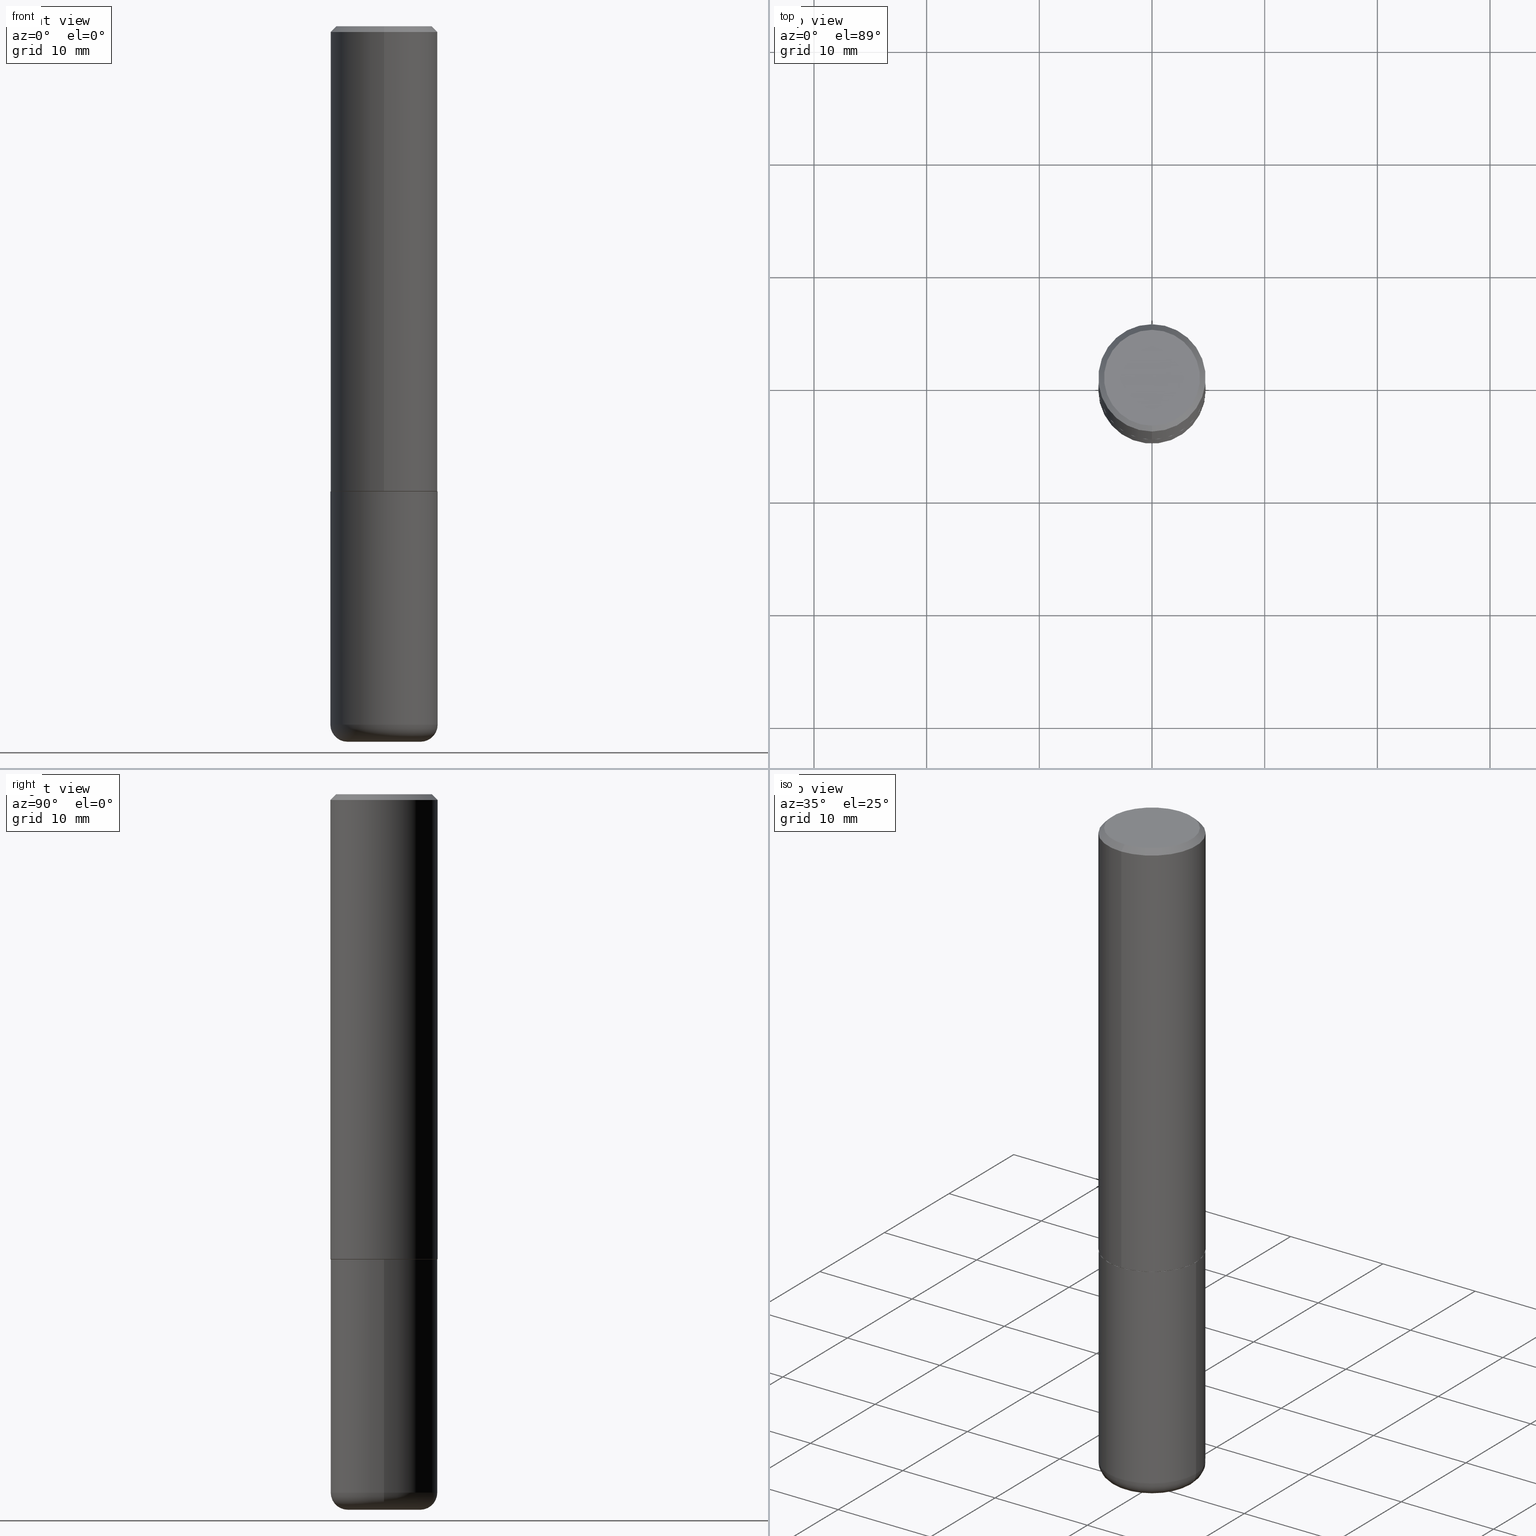
[diagram: canonical four-view strip — front | top / right | iso, engineering-drawing reading convention]
A machine part, canonical four-view strip (front | top / right | iso — engineering-drawing reading convention). The complete STEP part file that produces these views, byte-faithful:
ISO-10303-21;
HEADER;
FILE_DESCRIPTION (( 'STEP AP203' ),
    '1' );
FILE_NAME ('36214.STEP',
    '2024-03-01T16:00:02',
    ( '' ),
    ( '' ),
    'SwSTEP 2.0',
    'SolidWorks 2023',
    '' );
FILE_SCHEMA (( 'CONFIG_CONTROL_DESIGN' ));
ENDSEC;

DATA;
#1 = AXIS2_PLACEMENT_3D ( 'NONE', #33, #59, #215 ) ;
#2 = ORIENTED_EDGE ( 'NONE', *, *, #318, .F. ) ;
#3 = AXIS2_PLACEMENT_3D ( 'NONE', #41, #269, #229 ) ;
#4 = PERSON ( 'UNSPECIFIED', 'UNSPECIFIED', 'UNSPECIFIED', ('UNSPECIFIED'), ('UNSPECIFIED'), ('UNSPECIFIED') ) ;
#5 = PERSON_AND_ORGANIZATION_ROLE ( 'creator' ) ;
#6 = CIRCLE ( 'NONE', #154, 0.06000000000000021289 ) ;
#7 = ADVANCED_FACE ( 'NONE', ( #27 ), #253, .F. ) ;
#8 = PERSON_AND_ORGANIZATION ( #4, #290 ) ;
#9 = DIMENSIONAL_EXPONENTS ( 1.000000000000000000, 0.000000000000000000, 0.000000000000000000, 0.000000000000000000, 0.000000000000000000, 0.000000000000000000, 0.000000000000000000 ) ;
#10 = DIRECTION ( 'NONE',  ( -2.444664747397133900E-29, 3.492632796791749246E-15, 1.000000000000000000 ) ) ;
#11 = DIRECTION ( 'NONE',  ( -2.445468806185136597E-29, 3.491481338843145583E-15, 1.000000000000000000 ) ) ;
#12 = DIRECTION ( 'NONE',  ( -6.982962677686266711E-15, -1.000000000000000000, 3.483106191921935949E-15 ) ) ;
#13 = VERTEX_POINT ( 'NONE', #418 ) ;
#14 = FACE_OUTER_BOUND ( 'NONE', #47, .T. ) ;
#15 = TOROIDAL_SURFACE ( 'NONE', #413, 0.1275000000000000022, 0.06000000000000021289 ) ;
#16 = CARTESIAN_POINT ( 'NONE',  ( -0.1875000000000001110, -7.186946837227087200E-15, -2.440000000000000391 ) ) ;
#17 = VERTEX_POINT ( 'NONE', #133 ) ;
#18 = DIRECTION ( 'NONE',  ( -6.982962677686265922E-15, -1.000000000000000000, 2.929595703661408850E-15 ) ) ;
#19 = ORIENTED_EDGE ( 'NONE', *, *, #255, .F. ) ;
#20 = ADVANCED_FACE ( 'NONE', ( #97 ), #353, .T. ) ;
#21 = CC_DESIGN_APPROVAL ( #73, ( #331 ) ) ;
#22 = DIRECTION ( 'NONE',  ( -2.444664747397133900E-29, 3.492632796791749246E-15, 1.000000000000000000 ) ) ;
#23 = COORDINATED_UNIVERSAL_TIME_OFFSET ( 5, 0, .BEHIND. ) ;
#24 = LINE ( 'NONE', #122, #177 ) ;
#25 = FACE_OUTER_BOUND ( 'NONE', #384, .T. ) ;
#26 = CC_DESIGN_DATE_AND_TIME_ASSIGNMENT ( #86, #313, ( #68 ) ) ;
#27 = FACE_OUTER_BOUND ( 'NONE', #294, .T. ) ;
#28 = APPROVAL_PERSON_ORGANIZATION ( #121, #373, #241 ) ;
#29 = CARTESIAN_POINT ( 'NONE',  ( 0.000000000000000000, 0.000000000000000000, 0.000000000000000000 ) ) ;
#30 = EDGE_LOOP ( 'NONE', ( #291, #160, #71, #289 ) ) ;
#31 = DIRECTION ( 'NONE',  ( -2.445468806185136597E-29, 3.491481338843145583E-15, 1.000000000000000000 ) ) ;
#32 = EDGE_LOOP ( 'NONE', ( #93, #320, #287, #91 ) ) ;
#33 = CARTESIAN_POINT ( 'NONE',  ( 3.973886810050848091E-29, -5.673657175620113002E-15, -1.625000000000000222 ) ) ;
#34 = CC_DESIGN_APPROVAL ( #373, ( #68 ) ) ;
#35 = CARTESIAN_POINT ( 'NONE',  ( -1.286343374582161379E-15, -0.1875000000000000555, -0.01999999999999938979 ) ) ;
#36 = ORIENTED_EDGE ( 'NONE', *, *, #128, .F. ) ;
#37 = PERSON_AND_ORGANIZATION ( #4, #290 ) ;
#38 = ADVANCED_FACE ( 'NONE', ( #134 ), #257, .T. ) ;
#39 = VECTOR ( 'NONE', #409, 39.37007874015748143 ) ;
#40 = CARTESIAN_POINT ( 'NONE',  ( -1.367266251544855803E-29, -1.944183273402652920E-14, -2.500000000000000000 ) ) ;
#41 = CARTESIAN_POINT ( 'NONE',  ( 3.970135549772946054E-29, -5.672035661989801997E-15, -1.624000000000000110 ) ) ;
#42 = DATE_AND_TIME ( #70, #161 ) ;
#43 = LINE ( 'NONE', #397, #282 ) ;
#44 = PRODUCT ( '36214', '36214', '', ( #394 ) ) ;
#45 = CARTESIAN_POINT ( 'NONE',  ( 4.889329494794278169E-31, -6.985265593583513974E-17, -0.02000000000000004205 ) ) ;
#46 = CARTESIAN_POINT ( 'NONE',  ( 0.000000000000000000, 0.000000000000000000, 0.000000000000000000 ) ) ;
#47 = EDGE_LOOP ( 'NONE', ( #288, #157, #135, #151 ) ) ;
#48 = DIRECTION ( 'NONE',  ( -2.445468806185136597E-29, 3.491481338843145583E-15, 1.000000000000000000 ) ) ;
#49 = AXIS2_PLACEMENT_3D ( 'NONE', #45, #175, #12 ) ;
#50 = DIRECTION ( 'NONE',  ( -6.982962677686266711E-15, -1.000000000000000000, 3.483106191921935949E-15 ) ) ;
#51 = PERSON_AND_ORGANIZATION ( #4, #290 ) ;
#52 = DIRECTION ( 'NONE',  ( -6.982962677686266711E-15, -1.000000000000000000, 3.491481338843145583E-15 ) ) ;
#53 = CALENDAR_DATE ( 2024, 1, 3 ) ;
#54 = DIRECTION ( 'NONE',  ( -6.982962677686265133E-15, -1.000000000000000000, 3.492632796791748457E-15 ) ) ;
#55 = EDGE_CURVE ( 'NONE', #366, #187, #43, .T. ) ;
#56 = FACE_OUTER_BOUND ( 'NONE', #246, .T. ) ;
#57 = AXIS2_PLACEMENT_3D ( 'NONE', #250, #359, #50 ) ;
#58 = DIRECTION ( 'NONE',  ( 1.000000000000000000, -6.982962677686266711E-15, 4.876176775795935793E-29 ) ) ;
#59 = DIRECTION ( 'NONE',  ( -2.445468806185136597E-29, 3.491481338843145583E-15, 1.000000000000000000 ) ) ;
#60 = FACE_OUTER_BOUND ( 'NONE', #30, .T. ) ;
#61 = ORIENTED_EDGE ( 'NONE', *, *, #92, .T. ) ;
#62 = DIRECTION ( 'NONE',  ( -2.445468806185136597E-29, 3.491481338843145583E-15, 1.000000000000000000 ) ) ;
#63 = EDGE_CURVE ( 'NONE', #137, #158, #206, .T. ) ;
#64 = CC_DESIGN_SECURITY_CLASSIFICATION ( #68, ( #284 ) ) ;
#65 = ORIENTED_EDGE ( 'NONE', *, *, #181, .F. ) ;
#66 = CARTESIAN_POINT ( 'NONE',  ( 3.973886810050848091E-29, -5.673657175620113002E-15, -1.625000000000000222 ) ) ;
#67 = EDGE_CURVE ( 'NONE', #137, #406, #196, .T. ) ;
#68 = SECURITY_CLASSIFICATION ( '', '', #264 ) ;
#69 = DIRECTION ( 'NONE',  ( 1.000000000000000000, -6.982962677686266711E-15, 4.876176775795935793E-29 ) ) ;
#70 = CALENDAR_DATE ( 2024, 1, 3 ) ;
#71 = ORIENTED_EDGE ( 'NONE', *, *, #236, .F. ) ;
#72 = ORIENTED_EDGE ( 'NONE', *, *, #356, .T. ) ;
#73 = APPROVAL ( #402, 'UNSPECIFIED' ) ;
#74 = AXIS2_PLACEMENT_3D ( 'NONE', #314, #380, #54 ) ;
#75 = CARTESIAN_POINT ( 'NONE',  ( -1.286343374582161379E-15, -0.1875000000000000555, -0.01999999999999938979 ) ) ;
#76 = AXIS2_PLACEMENT_3D ( 'NONE', #119, #403, #337 ) ;
#77 = DIRECTION ( 'NONE',  ( 5.024295867789177050E-15, 0.7071067811867068897, 0.7071067811863879227 ) ) ;
#78 = FACE_OUTER_BOUND ( 'NONE', #156, .T. ) ;
#79 = PERSON_AND_ORGANIZATION_ROLE ( 'creator' ) ;
#80 = LINE ( 'NONE', #372, #39 ) ;
#81 = CIRCLE ( 'NONE', #1, 0.1875000000000000278 ) ;
#82 = DIRECTION ( 'NONE',  ( 1.000000000000000000, -6.982962677686263555E-15, 0.000000000000000000 ) ) ;
#83 = CALENDAR_DATE ( 2024, 1, 3 ) ;
#84 = ORIENTED_EDGE ( 'NONE', *, *, #255, .T. ) ;
#85 = ADVANCED_FACE ( 'NONE', ( #172 ), #362, .T. ) ;
#86 = DATE_AND_TIME ( #83, #414 ) ;
#87 = ORIENTED_EDGE ( 'NONE', *, *, #147, .F. ) ;
#88 = AXIS2_PLACEMENT_3D ( 'NONE', #275, #238, #176 ) ;
#89 = CIRCLE ( 'NONE', #258, 0.1275000000000000022 ) ;
#90 = DIRECTION ( 'NONE',  ( -2.444664747397133900E-29, 3.492632796791749246E-15, 1.000000000000000000 ) ) ;
#91 = ORIENTED_EDGE ( 'NONE', *, *, #285, .F. ) ;
#92 = EDGE_CURVE ( 'NONE', #17, #406, #198, .T. ) ;
#93 = ORIENTED_EDGE ( 'NONE', *, *, #236, .T. ) ;
#94 = DIRECTION ( 'NONE',  ( 7.105427357601001859E-15, 1.000000000000000000, -3.491481338843145583E-15 ) ) ;
#95 = ORIENTED_EDGE ( 'NONE', *, *, #138, .F. ) ;
#96 = PLANE ( 'NONE',  #261 ) ;
#97 = FACE_OUTER_BOUND ( 'NONE', #130, .T. ) ;
#98 = CC_DESIGN_DATE_AND_TIME_ASSIGNMENT ( #374, #365, ( #331 ) ) ;
#99 = AXIS2_PLACEMENT_3D ( 'NONE', #46, #266, #297 ) ;
#100 = DIRECTION ( 'NONE',  ( -2.444664747397133900E-29, 3.492632796791749246E-15, 1.000000000000000000 ) ) ;
#101 = EDGE_LOOP ( 'NONE', ( #316, #146, #272, #379 ) ) ;
#102 = CC_DESIGN_PERSON_AND_ORGANIZATION_ASSIGNMENT ( #51, #345, ( #68 ) ) ;
#103 = AXIS2_PLACEMENT_3D ( 'NONE', #237, #11, #82 ) ;
#104 = APPROVAL_DATE_TIME ( #199, #73 ) ;
#105 = CC_DESIGN_PERSON_AND_ORGANIZATION_ASSIGNMENT ( #142, #149, ( #44 ) ) ;
#106 = CARTESIAN_POINT ( 'NONE',  ( -0.1874999999999999722, 1.332267629550187651E-15, -9.223003294227946589E-30 ) ) ;
#107 = DIRECTION ( 'NONE',  ( -2.445468806185136597E-29, 3.491481338843145583E-15, 1.000000000000000000 ) ) ;
#108 = VECTOR ( 'NONE', #346, 39.37007874015748143 ) ;
#109 = FACE_OUTER_BOUND ( 'NONE', #116, .T. ) ;
#110 =( LENGTH_UNIT ( ) NAMED_UNIT ( * ) SI_UNIT ( $, .METRE. ) );
#111 = ORIENTED_EDGE ( 'NONE', *, *, #209, .F. ) ;
#112 = AXIS2_PLACEMENT_3D ( 'NONE', #323, #155, #312 ) ;
#113 = DIRECTION ( 'NONE',  ( 4.937700262164543309E-15, 0.7071067811865444641, -0.7071067811865505703 ) ) ;
#114 = DIRECTION ( 'NONE',  ( 6.982962677686266711E-15, 1.000000000000000000, -3.483106191921935949E-15 ) ) ;
#115 = COORDINATED_UNIVERSAL_TIME_OFFSET ( 5, 0, .BEHIND. ) ;
#116 = EDGE_LOOP ( 'NONE', ( #416, #243 ) ) ;
#117 = CARTESIAN_POINT ( 'NONE',  ( 1.309305502066175205E-15, 0.1874999999999999167, -0.02000000000000069431 ) ) ;
#118 = DIRECTION ( 'NONE',  ( 2.444664747397133900E-29, -3.492632796791749246E-15, -1.000000000000000000 ) ) ;
#119 = CARTESIAN_POINT ( 'NONE',  ( 5.966943887091733341E-29, -8.519214466777275048E-15, -2.440000000000000391 ) ) ;
#120 = EDGE_CURVE ( 'NONE', #280, #137, #80, .T. ) ;
#121 = PERSON_AND_ORGANIZATION ( #4, #290 ) ;
#122 = CARTESIAN_POINT ( 'NONE',  ( 1.332267629550188440E-15, 0.1875000000000001110, -6.548686493984534028E-16 ) ) ;
#123 = APPROVAL_DATE_TIME ( #153, #373 ) ;
#124 = ORIENTED_EDGE ( 'NONE', *, *, #318, .T. ) ;
#125 = DIRECTION ( 'NONE',  ( -1.000000000000000000, 7.105427357600997914E-15, 0.000000000000000000 ) ) ;
#126 = AXIS2_PLACEMENT_3D ( 'NONE', #184, #407, #242 ) ;
#127 = CONICAL_SURFACE ( 'NONE', #220, 0.1864999999999999714, 0.7853981633976704346 ) ;
#128 = EDGE_CURVE ( 'NONE', #280, #375, #239, .T. ) ;
#129 = DIRECTION ( 'NONE',  ( 1.000000000000000000, -6.982962677686265133E-15, 4.883557194083112340E-29 ) ) ;
#130 = EDGE_LOOP ( 'NONE', ( #65, #84, #217, #2 ) ) ;
#131 = CC_DESIGN_PERSON_AND_ORGANIZATION_ASSIGNMENT ( #292, #141, ( #284 ) ) ;
#132 = CARTESIAN_POINT ( 'NONE',  ( 1.239475875289312893E-15, 0.1675000000000002043, -8.067857737414488588E-16 ) ) ;
#133 = CARTESIAN_POINT ( 'NONE',  ( -1.217738394604446837E-15, -0.1675000000000002043, 3.632462131837884068E-16 ) ) ;
#134 = FACE_OUTER_BOUND ( 'NONE', #281, .T. ) ;
#135 = ORIENTED_EDGE ( 'NONE', *, *, #273, .T. ) ;
#136 = CIRCLE ( 'NONE', #103, 0.1874999999999999722 ) ;
#137 = VERTEX_POINT ( 'NONE', #205 ) ;
#138 = EDGE_CURVE ( 'NONE', #375, #280, #276, .T. ) ;
#139 = AXIS2_PLACEMENT_3D ( 'NONE', #392, #100, #183 ) ;
#140 = VECTOR ( 'NONE', #77, 39.37007874015748854 ) ;
#141 = PERSON_AND_ORGANIZATION_ROLE ( 'design_supplier' ) ;
#142 = PERSON_AND_ORGANIZATION ( #4, #290 ) ;
#143 = CARTESIAN_POINT ( 'NONE',  ( 0.000000000000000000, 0.000000000000000000, 0.000000000000000000 ) ) ;
#144 = LINE ( 'NONE', #267, #231 ) ;
#145 = APPLICATION_PROTOCOL_DEFINITION ( 'international standard', 'config_control_design', 1994, #170 ) ;
#146 = ORIENTED_EDGE ( 'NONE', *, *, #307, .T. ) ;
#147 = EDGE_CURVE ( 'NONE', #358, #13, #325, .T. ) ;
#148 = DIRECTION ( 'NONE',  ( 2.444664747397133900E-29, -3.492632796791749246E-15, -1.000000000000000000 ) ) ;
#149 = PERSON_AND_ORGANIZATION_ROLE ( 'design_owner' ) ;
#150 = CONICAL_SURFACE ( 'NONE', #197, 0.1874999999999999722, 0.7853981633974473908 ) ;
#151 = ORIENTED_EDGE ( 'NONE', *, *, #277, .F. ) ;
#152 = CARTESIAN_POINT ( 'NONE',  ( 1.332267629550208753E-15, 0.1874999999999945599, -1.624000000000000776 ) ) ;
#153 = DATE_AND_TIME ( #53, #216 ) ;
#154 = AXIS2_PLACEMENT_3D ( 'NONE', #180, #52, #234 ) ;
#155 = DIRECTION ( 'NONE',  ( 2.444664747397133900E-29, -3.492632796791749246E-15, -1.000000000000000000 ) ) ;
#156 = EDGE_LOOP ( 'NONE', ( #412, #72 ) ) ;
#157 = ORIENTED_EDGE ( 'NONE', *, *, #147, .T. ) ;
#158 = VERTEX_POINT ( 'NONE', #152 ) ;
#159 = ADVANCED_FACE ( 'NONE', ( #274 ), #369, .T. ) ;
#160 = ORIENTED_EDGE ( 'NONE', *, *, #200, .T. ) ;
#161 = LOCAL_TIME ( 11, 0, 2.000000000000000000, #202 ) ;
#162 = ORIENTED_EDGE ( 'NONE', *, *, #181, .T. ) ;
#163 = EDGE_CURVE ( 'NONE', #366, #17, #360, .T. ) ;
#164 = CARTESIAN_POINT ( 'NONE',  ( 0.1875000000000001110, -9.828519968843450056E-15, -2.440000000000000391 ) ) ;
#165 = DIRECTION ( 'NONE',  ( -6.982962677686266711E-15, -1.000000000000000000, 3.492632796791749246E-15 ) ) ;
#166 = UNCERTAINTY_MEASURE_WITH_UNIT (LENGTH_MEASURE( 1.000000000000000082E-05 ), #171, 'distance_accuracy_value', 'NONE');
#167 = DIRECTION ( 'NONE',  ( 1.000000000000000000, -6.982962677686267499E-15, 0.000000000000000000 ) ) ;
#168 = VERTEX_POINT ( 'NONE', #310 ) ;
#169 = APPLICATION_PROTOCOL_DEFINITION ( 'international standard', 'config_control_design', 1994, #396 ) ;
#170 = APPLICATION_CONTEXT ( 'configuration controlled 3d designs of mechanical parts and assemblies' ) ;
#171 =( CONVERSION_BASED_UNIT ( 'INCH', #330 ) LENGTH_UNIT ( ) NAMED_UNIT ( #9 ) );
#172 = FACE_OUTER_BOUND ( 'NONE', #248, .T. ) ;
#173 = APPROVAL_STATUS ( 'not_yet_approved' ) ;
#174 = CC_DESIGN_PERSON_AND_ORGANIZATION_ASSIGNMENT ( #37, #5, ( #284 ) ) ;
#175 = DIRECTION ( 'NONE',  ( -2.444664747397133900E-29, 3.492632796791749246E-15, 1.000000000000000000 ) ) ;
#176 = DIRECTION ( 'NONE',  ( -6.982962677686265922E-15, -1.000000000000000000, 2.929595703661408850E-15 ) ) ;
#177 = VECTOR ( 'NONE', #244, 39.37007874015748143 ) ;
#178 = CC_DESIGN_APPROVAL ( #265, ( #284 ) ) ;
#179 = ORIENTED_EDGE ( 'NONE', *, *, #307, .F. ) ;
#180 = CARTESIAN_POINT ( 'NONE',  ( 0.1275000000000000022, -9.409542208182273423E-15, -2.440000000000000391 ) ) ;
#181 = EDGE_CURVE ( 'NONE', #158, #187, #24, .T. ) ;
#182 = DIRECTION ( 'NONE',  ( -2.444664747397133900E-29, 3.492632796791749246E-15, 1.000000000000000000 ) ) ;
#183 = DIRECTION ( 'NONE',  ( -6.982962677686266711E-15, -1.000000000000000000, 3.492632796791749246E-15 ) ) ;
#184 = CARTESIAN_POINT ( 'NONE',  ( 3.972580214520343358E-29, -5.675528294786593068E-15, -1.625000000000000000 ) ) ;
#185 = CONICAL_SURFACE ( 'NONE', #408, 0.1874999999999999722, 0.7853981633974473908 ) ;
#186 = ADVANCED_FACE ( 'NONE', ( #14 ), #15, .T. ) ;
#187 = VERTEX_POINT ( 'NONE', #117 ) ;
#188 = ORIENTED_EDGE ( 'NONE', *, *, #230, .F. ) ;
#189 = ORIENTED_EDGE ( 'NONE', *, *, #213, .F. ) ;
#190 = DIRECTION ( 'NONE',  ( 1.000000000000000000, -6.982962677686265133E-15, 4.883557194083112340E-29 ) ) ;
#191 = COORDINATED_UNIVERSAL_TIME_OFFSET ( 5, 0, .BEHIND. ) ;
#192 = CARTESIAN_POINT ( 'NONE',  ( 6.113672015462842613E-29, -8.728703347107866520E-15, -2.500000000000000444 ) ) ;
#193 = ADVANCED_BREP_SHAPE_REPRESENTATION ( '36214', ( #226, #385, #99 ), #341 ) ;
#194 = LOCAL_TIME ( 11, 0, 2.000000000000000000, #204 ) ;
#195 = DIRECTION ( 'NONE',  ( 1.000000000000000000, -6.982962677686266711E-15, 0.000000000000000000 ) ) ;
#196 = LINE ( 'NONE', #327, #293 ) ;
#197 = AXIS2_PLACEMENT_3D ( 'NONE', #295, #148, #210 ) ;
#198 = LINE ( 'NONE', #35, #108 ) ;
#199 = DATE_AND_TIME ( #235, #393 ) ;
#200 = EDGE_CURVE ( 'NONE', #358, #259, #249, .T. ) ;
#201 = AXIS2_PLACEMENT_3D ( 'NONE', #336, #48, #339 ) ;
#202 = COORDINATED_UNIVERSAL_TIME_OFFSET ( 5, 0, .BEHIND. ) ;
#203 = FACE_OUTER_BOUND ( 'NONE', #298, .T. ) ;
#204 = COORDINATED_UNIVERSAL_TIME_OFFSET ( 5, 0, .BEHIND. ) ;
#205 = CARTESIAN_POINT ( 'NONE',  ( -1.309305502066136748E-15, -0.1875000000000058842, -1.623999999999999666 ) ) ;
#206 = CIRCLE ( 'NONE', #3, 0.1875000000000002220 ) ;
#207 = TOROIDAL_SURFACE ( 'NONE', #377, 0.1275000000000000022, 0.06000000000000021289 ) ;
#208 = CARTESIAN_POINT ( 'NONE',  ( 4.889329494794278169E-31, -6.985265593583513974E-17, -0.02000000000000004205 ) ) ;
#209 = EDGE_CURVE ( 'NONE', #13, #358, #89, .T. ) ;
#210 = DIRECTION ( 'NONE',  ( 6.982962677686266711E-15, 1.000000000000000000, -3.483106191921935949E-15 ) ) ;
#211 = ORIENTED_EDGE ( 'NONE', *, *, #55, .F. ) ;
#212 = CARTESIAN_POINT ( 'NONE',  ( 3.972580214520343358E-29, -5.675528294786593068E-15, -1.625000000000000000 ) ) ;
#213 = EDGE_CURVE ( 'NONE', #168, #218, #332, .T. ) ;
#214 = CARTESIAN_POINT ( 'NONE',  ( 5.421527638856644098E-45, -7.745604079391426345E-31, -2.217697802788302260E-16 ) ) ;
#215 = DIRECTION ( 'NONE',  ( 1.000000000000000000, -6.982962677686266711E-15, 0.000000000000000000 ) ) ;
#216 = LOCAL_TIME ( 11, 0, 2.000000000000000000, #23 ) ;
#217 = ORIENTED_EDGE ( 'NONE', *, *, #67, .T. ) ;
#218 = VERTEX_POINT ( 'NONE', #222 ) ;
#219 = CARTESIAN_POINT ( 'NONE',  ( 0.000000000000000000, 0.000000000000000000, 0.000000000000000000 ) ) ;
#220 = AXIS2_PLACEMENT_3D ( 'NONE', #254, #22, #279 ) ;
#221 = DIRECTION ( 'NONE',  ( -6.982962677686265133E-15, -1.000000000000000000, 3.492632796791748457E-15 ) ) ;
#222 = CARTESIAN_POINT ( 'NONE',  ( 0.1875000000000000278, -6.982962677686288010E-15, -1.625000000000000222 ) ) ;
#223 = DESIGN_CONTEXT ( 'detailed design', #396, 'design' ) ;
#224 = EDGE_CURVE ( 'NONE', #218, #168, #81, .T. ) ;
#225 = CIRCLE ( 'NONE', #76, 0.1874999999999999722 ) ;
#226 = MANIFOLD_SOLID_BREP ( 'Body-Move/Copy2[1]', #354 ) ;
#227 = PRODUCT_RELATED_PRODUCT_CATEGORY ( 'detail', '', ( #44 ) ) ;
#228 = PERSON_AND_ORGANIZATION ( #4, #290 ) ;
#229 = DIRECTION ( 'NONE',  ( -6.982962677686265922E-15, -1.000000000000000000, 2.913971193241877216E-15 ) ) ;
#230 = EDGE_CURVE ( 'NONE', #406, #187, #370, .T. ) ;
#231 = VECTOR ( 'NONE', #399, 39.37007874015748143 ) ;
#232 = DIRECTION ( 'NONE',  ( 2.438088387897960049E-29, -3.491481338843145188E-15, -1.000000000000000000 ) ) ;
#233 = DIRECTION ( 'NONE',  ( 2.438088387897960049E-29, -3.491481338843145188E-15, -1.000000000000000000 ) ) ;
#234 = DIRECTION ( 'NONE',  ( 1.000000000000000000, -6.982962677686275388E-15, 0.000000000000000000 ) ) ;
#235 = CALENDAR_DATE ( 2024, 1, 3 ) ;
#236 = EDGE_CURVE ( 'NONE', #348, #259, #225, .T. ) ;
#237 = CARTESIAN_POINT ( 'NONE',  ( 5.966943887091733341E-29, -8.519214466777275048E-15, -2.440000000000000391 ) ) ;
#238 = DIRECTION ( 'NONE',  ( -2.444664747397133900E-29, 3.492632796791749246E-15, 1.000000000000000000 ) ) ;
#239 = CIRCLE ( 'NONE', #391, 0.1864999999999999714 ) ;
#240 = AXIS2_PLACEMENT_3D ( 'NONE', #214, #90, #221 ) ;
#241 = APPROVAL_ROLE ( '' ) ;
#242 = DIRECTION ( 'NONE',  ( -6.982962677686265922E-15, -1.000000000000000000, 2.929595703661408850E-15 ) ) ;
#243 = ORIENTED_EDGE ( 'NONE', *, *, #213, .T. ) ;
#244 = DIRECTION ( 'NONE',  ( -2.444664747397133900E-29, 3.492632796791749246E-15, 1.000000000000000000 ) ) ;
#245 = SHAPE_DEFINITION_REPRESENTATION ( #262, #193 ) ;
#246 = EDGE_LOOP ( 'NONE', ( #304, #317, #278, #124 ) ) ;
#247 = CC_DESIGN_PERSON_AND_ORGANIZATION_ASSIGNMENT ( #8, #79, ( #331 ) ) ;
#248 = EDGE_LOOP ( 'NONE', ( #368, #400, #309, #189 ) ) ;
#249 = CIRCLE ( 'NONE', #363, 0.06000000000000021289 ) ;
#250 = CARTESIAN_POINT ( 'NONE',  ( 4.889329494794278169E-31, -6.985265593583513974E-17, -0.02000000000000004205 ) ) ;
#251 = APPROVAL_PERSON_ORGANIZATION ( #333, #265, #338 ) ;
#252 = CYLINDRICAL_SURFACE ( 'NONE', #383, 0.1874999999999999722 ) ;
#253 = PLANE ( 'NONE',  #376 ) ;
#254 = CARTESIAN_POINT ( 'NONE',  ( 3.972580214520343358E-29, -5.675528294786593068E-15, -1.625000000000000000 ) ) ;
#255 = EDGE_CURVE ( 'NONE', #158, #137, #311, .T. ) ;
#256 = DIRECTION ( 'NONE',  ( -2.445468806185136597E-29, 3.491481338843145583E-15, 1.000000000000000000 ) ) ;
#257 = CYLINDRICAL_SURFACE ( 'NONE', #139, 0.1875000000000001110 ) ;
#258 = AXIS2_PLACEMENT_3D ( 'NONE', #192, #31, #167 ) ;
#259 = VERTEX_POINT ( 'NONE', #16 ) ;
#260 = ADVANCED_FACE ( 'NONE', ( #56 ), #150, .T. ) ;
#261 = AXIS2_PLACEMENT_3D ( 'NONE', #40, #233, #271 ) ;
#262 = PRODUCT_DEFINITION_SHAPE ( 'NONE', 'NONE',  #331 ) ;
#263 = ADVANCED_FACE ( 'NONE', ( #203 ), #185, .T. ) ;
#264 = SECURITY_CLASSIFICATION_LEVEL ( 'unclassified' ) ;
#265 = APPROVAL ( #173, 'UNSPECIFIED' ) ;
#266 = DIRECTION ( 'NONE',  ( 0.000000000000000000, 0.000000000000000000, 1.000000000000000000 ) ) ;
#267 = CARTESIAN_POINT ( 'NONE',  ( 0.1874999999999999722, -1.309305502066174811E-15, 9.142831454617378210E-30 ) ) ;
#268 = DIRECTION ( 'NONE',  ( -2.445468806185136877E-29, 3.491481338843145188E-15, 1.000000000000000000 ) ) ;
#269 = DIRECTION ( 'NONE',  ( -2.444664747397133900E-29, 3.492632796791749246E-15, 1.000000000000000000 ) ) ;
#270 = CLOSED_SHELL ( 'NONE', ( #159, #38, #263, #260, #20, #382, #7, #329 ) ) ;
#271 = DIRECTION ( 'NONE',  ( -1.000000000000000000, 6.982962677686265922E-15, -4.876176775795935793E-29 ) ) ;
#272 = ORIENTED_EDGE ( 'NONE', *, *, #63, .F. ) ;
#273 = EDGE_CURVE ( 'NONE', #13, #348, #6, .T. ) ;
#274 = FACE_OUTER_BOUND ( 'NONE', #101, .T. ) ;
#275 = CARTESIAN_POINT ( 'NONE',  ( 3.972580214520343358E-29, -5.675528294786593068E-15, -1.625000000000000000 ) ) ;
#276 = CIRCLE ( 'NONE', #88, 0.1864999999999999714 ) ;
#277 = EDGE_CURVE ( 'NONE', #259, #348, #136, .T. ) ;
#278 = ORIENTED_EDGE ( 'NONE', *, *, #55, .T. ) ;
#279 = DIRECTION ( 'NONE',  ( -6.982962677686265922E-15, -1.000000000000000000, 2.929595703661408850E-15 ) ) ;
#280 = VERTEX_POINT ( 'NONE', #342 ) ;
#281 = EDGE_LOOP ( 'NONE', ( #388, #162, #188, #352 ) ) ;
#282 = VECTOR ( 'NONE', #113, 39.37007874015748143 ) ;
#283 = DIRECTION ( 'NONE',  ( -2.444664747397133900E-29, 3.492632796791749246E-15, 1.000000000000000000 ) ) ;
#284 = PRODUCT_DEFINITION_FORMATION_WITH_SPECIFIED_SOURCE ( 'ANY', '', #44, .NOT_KNOWN. ) ;
#285 = EDGE_CURVE ( 'NONE', #348, #218, #144, .T. ) ;
#286 = CARTESIAN_POINT ( 'NONE',  ( 5.966943887091733341E-29, -8.519214466777275048E-15, -2.440000000000000391 ) ) ;
#287 = ORIENTED_EDGE ( 'NONE', *, *, #224, .F. ) ;
#288 = ORIENTED_EDGE ( 'NONE', *, *, #200, .F. ) ;
#289 = ORIENTED_EDGE ( 'NONE', *, *, #273, .F. ) ;
#290 = ORGANIZATION ( 'UNSPECIFIED', 'UNSPECIFIED', '' ) ;
#291 = ORIENTED_EDGE ( 'NONE', *, *, #209, .T. ) ;
#292 = PERSON_AND_ORGANIZATION ( #4, #290 ) ;
#293 = VECTOR ( 'NONE', #10, 39.37007874015748143 ) ;
#294 = EDGE_LOOP ( 'NONE', ( #36, #95 ) ) ;
#295 = CARTESIAN_POINT ( 'NONE',  ( 4.889329494794278169E-31, -6.985265593583513974E-17, -0.02000000000000004205 ) ) ;
#296 =( NAMED_UNIT ( * ) PLANE_ANGLE_UNIT ( ) SI_UNIT ( $, .RADIAN. ) );
#297 = DIRECTION ( 'NONE',  ( 1.000000000000000000, 0.000000000000000000, 0.000000000000000000 ) ) ;
#298 = EDGE_LOOP ( 'NONE', ( #381, #61, #340, #211 ) ) ;
#299 = ADVANCED_FACE ( 'NONE', ( #109 ), #305, .F. ) ;
#300 = AXIS2_PLACEMENT_3D ( 'NONE', #219, #355, #165 ) ;
#301 = AXIS2_PLACEMENT_3D ( 'NONE', #143, #107, #69 ) ;
#302 = CIRCLE ( 'NONE', #49, 0.1874999999999999722 ) ;
#303 =( NAMED_UNIT ( * ) SI_UNIT ( $, .STERADIAN. ) SOLID_ANGLE_UNIT ( ) );
#304 = ORIENTED_EDGE ( 'NONE', *, *, #92, .F. ) ;
#305 = PLANE ( 'NONE',  #326 ) ;
#306 = ORIENTED_EDGE ( 'NONE', *, *, #120, .T. ) ;
#307 = EDGE_CURVE ( 'NONE', #375, #158, #308, .T. ) ;
#308 = LINE ( 'NONE', #334, #140 ) ;
#309 = ORIENTED_EDGE ( 'NONE', *, *, #285, .T. ) ;
#310 = CARTESIAN_POINT ( 'NONE',  ( -0.1875000000000000278, -5.764168191648507360E-15, -1.625000000000000222 ) ) ;
#311 = CIRCLE ( 'NONE', #395, 0.1875000000000002220 ) ;
#312 = DIRECTION ( 'NONE',  ( 6.982962677686265922E-15, 1.000000000000000000, -3.492632796791749246E-15 ) ) ;
#313 = DATE_TIME_ROLE ( 'classification_date' ) ;
#314 = CARTESIAN_POINT ( 'NONE',  ( 5.421527638856644098E-45, -7.745604079391426345E-31, -2.217697802788302260E-16 ) ) ;
#315 = CARTESIAN_POINT ( 'NONE',  ( 1.328714915871427774E-15, 0.1864999999999943092, -1.625000000000000666 ) ) ;
#316 = ORIENTED_EDGE ( 'NONE', *, *, #128, .T. ) ;
#317 = ORIENTED_EDGE ( 'NONE', *, *, #163, .F. ) ;
#318 = EDGE_CURVE ( 'NONE', #187, #406, #302, .T. ) ;
#319 = CARTESIAN_POINT ( 'NONE',  ( -0.1275000000000000022, -7.504854098120410814E-15, -2.500000000000000444 ) ) ;
#320 = ORIENTED_EDGE ( 'NONE', *, *, #411, .T. ) ;
#321 = AXIS2_PLACEMENT_3D ( 'NONE', #66, #324, #195 ) ;
#322 = EDGE_LOOP ( 'NONE', ( #111, #87 ) ) ;
#323 = CARTESIAN_POINT ( 'NONE',  ( 1.169646248512450778E-15, 0.1675000000000002043, -6.959008836020338198E-16 ) ) ;
#324 = DIRECTION ( 'NONE',  ( -2.445468806185136597E-29, 3.491481338843145583E-15, 1.000000000000000000 ) ) ;
#325 = CIRCLE ( 'NONE', #201, 0.1275000000000000022 ) ;
#326 = AXIS2_PLACEMENT_3D ( 'NONE', #344, #232, #371 ) ;
#327 = CARTESIAN_POINT ( 'NONE',  ( -1.309305502066175797E-15, -0.1875000000000001110, 6.548686493984534028E-16 ) ) ;
#328 = APPROVAL_DATE_TIME ( #42, #265 ) ;
#329 = ADVANCED_FACE ( 'NONE', ( #78 ), #350, .F. ) ;
#330 = LENGTH_MEASURE_WITH_UNIT ( LENGTH_MEASURE( 0.02539999999999999897 ), #110 );
#331 = PRODUCT_DEFINITION ( 'UNKNOWN', '', #284, #223 ) ;
#332 = CIRCLE ( 'NONE', #321, 0.1875000000000000278 ) ;
#333 = PERSON_AND_ORGANIZATION ( #4, #290 ) ;
#334 = CARTESIAN_POINT ( 'NONE',  ( 1.325162202192626283E-15, 0.1864999999999943092, -1.625000000000000666 ) ) ;
#335 = LINE ( 'NONE', #106, #401 ) ;
#336 = CARTESIAN_POINT ( 'NONE',  ( 6.113672015462842613E-29, -8.728703347107866520E-15, -2.500000000000000444 ) ) ;
#337 = DIRECTION ( 'NONE',  ( 1.000000000000000000, -6.982962677686263555E-15, 0.000000000000000000 ) ) ;
#338 = APPROVAL_ROLE ( '' ) ;
#339 = DIRECTION ( 'NONE',  ( 1.000000000000000000, -6.982962677686267499E-15, 0.000000000000000000 ) ) ;
#340 = ORIENTED_EDGE ( 'NONE', *, *, #230, .T. ) ;
#341 =( GEOMETRIC_REPRESENTATION_CONTEXT ( 3 ) GLOBAL_UNCERTAINTY_ASSIGNED_CONTEXT ( ( #166 ) ) GLOBAL_UNIT_ASSIGNED_CONTEXT ( ( #171, #296, #303 ) ) REPRESENTATION_CONTEXT ( 'NONE', 'WORKASPACE' ) );
#342 = CARTESIAN_POINT ( 'NONE',  ( -1.302322539388448565E-15, -0.1865000000000056335, -1.624999999999999556 ) ) ;
#343 = DIRECTION ( 'NONE',  ( -2.444664747397133900E-29, 3.492632796791749246E-15, 1.000000000000000000 ) ) ;
#344 = CARTESIAN_POINT ( 'NONE',  ( 3.973886810050848091E-29, -5.673657175620113002E-15, -1.625000000000000222 ) ) ;
#345 = PERSON_AND_ORGANIZATION_ROLE ( 'classification_officer' ) ;
#346 = DIRECTION ( 'NONE',  ( -4.851104656540959542E-15, -0.7071067811865493491, -0.7071067811865456854 ) ) ;
#347 = CARTESIAN_POINT ( 'NONE',  ( 3.970135549772946054E-29, -5.672035661989801997E-15, -1.624000000000000110 ) ) ;
#348 = VERTEX_POINT ( 'NONE', #164 ) ;
#349 = CIRCLE ( 'NONE', #240, 0.1675000000000002043 ) ;
#350 = PLANE ( 'NONE',  #112 ) ;
#351 = ADVANCED_FACE ( 'NONE', ( #60 ), #207, .T. ) ;
#352 = ORIENTED_EDGE ( 'NONE', *, *, #67, .F. ) ;
#353 = CYLINDRICAL_SURFACE ( 'NONE', #300, 0.1875000000000001110 ) ;
#354 = CLOSED_SHELL ( 'NONE', ( #364, #351, #299, #85, #186, #405 ) ) ;
#355 = DIRECTION ( 'NONE',  ( -2.444664747397133900E-29, 3.492632796791749246E-15, 1.000000000000000000 ) ) ;
#356 = EDGE_CURVE ( 'NONE', #17, #366, #349, .T. ) ;
#357 = FACE_OUTER_BOUND ( 'NONE', #32, .T. ) ;
#358 = VERTEX_POINT ( 'NONE', #319 ) ;
#359 = DIRECTION ( 'NONE',  ( -2.444664747397133900E-29, 3.492632796791749246E-15, 1.000000000000000000 ) ) ;
#360 = CIRCLE ( 'NONE', #74, 0.1675000000000002043 ) ;
#361 = APPROVAL_PERSON_ORGANIZATION ( #228, #73, #398 ) ;
#362 = CYLINDRICAL_SURFACE ( 'NONE', #301, 0.1874999999999999722 ) ;
#363 = AXIS2_PLACEMENT_3D ( 'NONE', #390, #94, #125 ) ;
#364 = ADVANCED_FACE ( 'NONE', ( #357 ), #252, .T. ) ;
#365 = DATE_TIME_ROLE ( 'creation_date' ) ;
#366 = VERTEX_POINT ( 'NONE', #132 ) ;
#367 = CALENDAR_DATE ( 2024, 1, 3 ) ;
#368 = ORIENTED_EDGE ( 'NONE', *, *, #411, .F. ) ;
#369 = CONICAL_SURFACE ( 'NONE', #126, 0.1864999999999999714, 0.7853981633976704346 ) ;
#370 = CIRCLE ( 'NONE', #57, 0.1874999999999999722 ) ;
#371 = DIRECTION ( 'NONE',  ( -1.000000000000000000, 6.982962677686265922E-15, -4.876176775795935793E-29 ) ) ;
#372 = CARTESIAN_POINT ( 'NONE',  ( -1.302322539388448565E-15, -0.1865000000000056335, -1.624999999999999556 ) ) ;
#373 = APPROVAL ( #410, 'UNSPECIFIED' ) ;
#374 = DATE_AND_TIME ( #367, #194 ) ;
#375 = VERTEX_POINT ( 'NONE', #315 ) ;
#376 = AXIS2_PLACEMENT_3D ( 'NONE', #386, #283, #415 ) ;
#377 = AXIS2_PLACEMENT_3D ( 'NONE', #286, #256, #190 ) ;
#378 = DIRECTION ( 'NONE',  ( -6.982962677686265922E-15, -1.000000000000000000, 2.913971193241877216E-15 ) ) ;
#379 = ORIENTED_EDGE ( 'NONE', *, *, #120, .F. ) ;
#380 = DIRECTION ( 'NONE',  ( -2.444664747397133900E-29, 3.492632796791749246E-15, 1.000000000000000000 ) ) ;
#381 = ORIENTED_EDGE ( 'NONE', *, *, #356, .F. ) ;
#382 = ADVANCED_FACE ( 'NONE', ( #25 ), #127, .T. ) ;
#383 = AXIS2_PLACEMENT_3D ( 'NONE', #29, #417, #58 ) ;
#384 = EDGE_LOOP ( 'NONE', ( #179, #404, #306, #19 ) ) ;
#385 = MANIFOLD_SOLID_BREP ( 'Body-Move/Copy2[2]', #270 ) ;
#386 = CARTESIAN_POINT ( 'NONE',  ( 3.972580214520343918E-29, -5.675528294786593856E-15, -1.625000000000000222 ) ) ;
#387 = CARTESIAN_POINT ( 'NONE',  ( 5.966943887091733341E-29, -8.519214466777275048E-15, -2.440000000000000391 ) ) ;
#388 = ORIENTED_EDGE ( 'NONE', *, *, #63, .T. ) ;
#389 = FACE_OUTER_BOUND ( 'NONE', #322, .T. ) ;
#390 = CARTESIAN_POINT ( 'NONE',  ( -0.1275000000000000022, -7.613272478683147690E-15, -2.440000000000000391 ) ) ;
#391 = AXIS2_PLACEMENT_3D ( 'NONE', #212, #343, #18 ) ;
#392 = CARTESIAN_POINT ( 'NONE',  ( 0.000000000000000000, 0.000000000000000000, 0.000000000000000000 ) ) ;
#393 = LOCAL_TIME ( 11, 0, 2.000000000000000000, #115 ) ;
#394 = MECHANICAL_CONTEXT ( 'NONE', #170, 'mechanical' ) ;
#395 = AXIS2_PLACEMENT_3D ( 'NONE', #347, #182, #378 ) ;
#396 = APPLICATION_CONTEXT ( 'configuration controlled 3d designs of mechanical parts and assemblies' ) ;
#397 = CARTESIAN_POINT ( 'NONE',  ( 1.309305502066175205E-15, 0.1874999999999999167, -0.02000000000000069431 ) ) ;
#398 = APPROVAL_ROLE ( '' ) ;
#399 = DIRECTION ( 'NONE',  ( -2.445468806185136877E-29, 3.491481338843145188E-15, 1.000000000000000000 ) ) ;
#400 = ORIENTED_EDGE ( 'NONE', *, *, #277, .T. ) ;
#401 = VECTOR ( 'NONE', #268, 39.37007874015748143 ) ;
#402 = APPROVAL_STATUS ( 'not_yet_approved' ) ;
#403 = DIRECTION ( 'NONE',  ( -2.445468806185136597E-29, 3.491481338843145583E-15, 1.000000000000000000 ) ) ;
#404 = ORIENTED_EDGE ( 'NONE', *, *, #138, .T. ) ;
#405 = ADVANCED_FACE ( 'NONE', ( #389 ), #96, .T. ) ;
#406 = VERTEX_POINT ( 'NONE', #75 ) ;
#407 = DIRECTION ( 'NONE',  ( -2.444664747397133900E-29, 3.492632796791749246E-15, 1.000000000000000000 ) ) ;
#408 = AXIS2_PLACEMENT_3D ( 'NONE', #208, #118, #114 ) ;
#409 = DIRECTION ( 'NONE',  ( -4.937700262165644559E-15, -0.7071067811867021158, 0.7071067811863929187 ) ) ;
#410 = APPROVAL_STATUS ( 'not_yet_approved' ) ;
#411 = EDGE_CURVE ( 'NONE', #259, #168, #335, .T. ) ;
#412 = ORIENTED_EDGE ( 'NONE', *, *, #163, .T. ) ;
#413 = AXIS2_PLACEMENT_3D ( 'NONE', #387, #62, #129 ) ;
#414 = LOCAL_TIME ( 11, 0, 2.000000000000000000, #191 ) ;
#415 = DIRECTION ( 'NONE',  ( -6.982962677686265922E-15, -1.000000000000000000, 3.492632796791749246E-15 ) ) ;
#416 = ORIENTED_EDGE ( 'NONE', *, *, #224, .T. ) ;
#417 = DIRECTION ( 'NONE',  ( -2.445468806185136597E-29, 3.491481338843145583E-15, 1.000000000000000000 ) ) ;
#418 = CARTESIAN_POINT ( 'NONE',  ( 0.1275000000000000022, -9.619031088512866473E-15, -2.500000000000000444 ) ) ;
ENDSEC;
END-ISO-10303-21;
